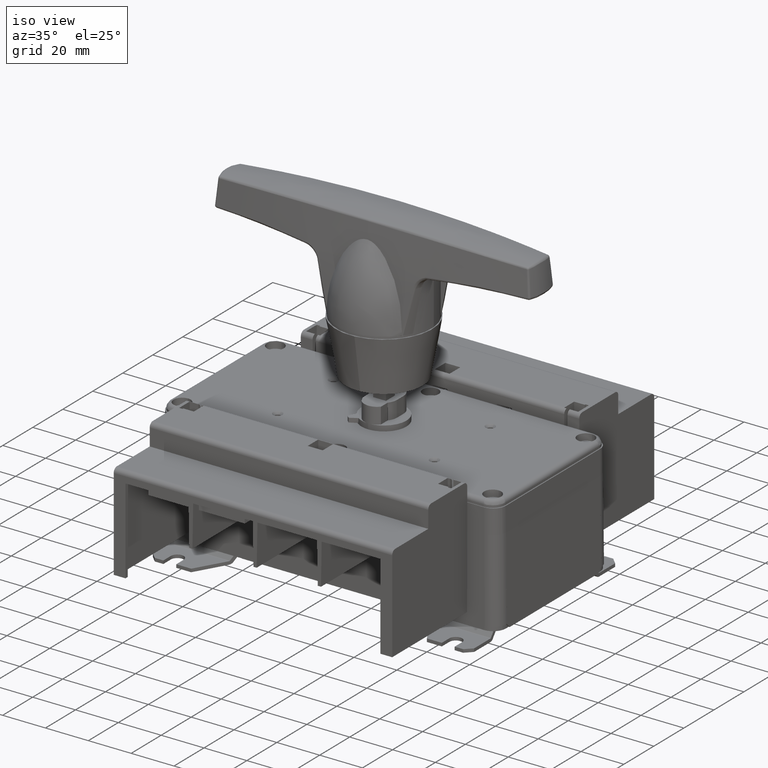
[diagram: clean part render]
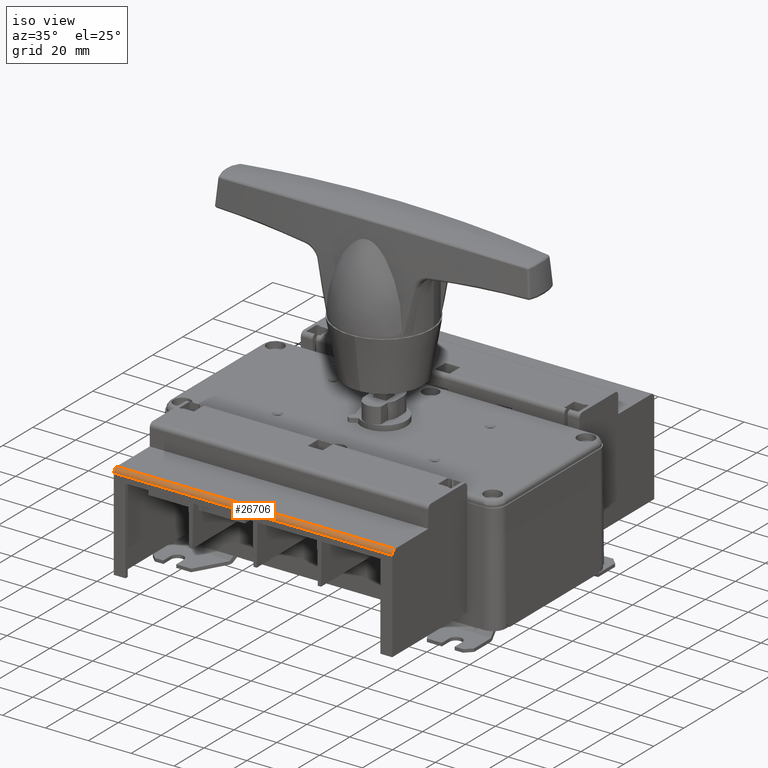
[diagram: same view with one face highlighted and labeled with its STEP entity id]
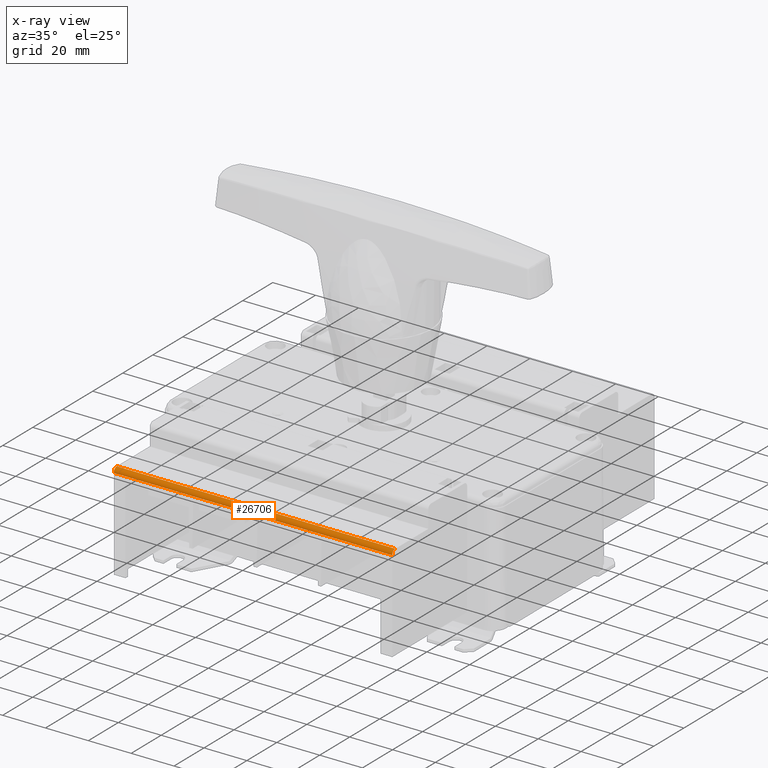
[diagram: x-ray of the same camera — body ghosted, the highlighted face saturated]
A machine part, iso view. The second image highlights one B-rep face of the part: STEP entity #26706.
The next image is the same camera in x-ray: the body ghosted, the highlighted face saturated — about 0% of this face is hidden behind the body in this view.
In plain terms, the highlighted cylindrical surface (edge-blend (fillet) strip) has radius 2 mm, axis along (1, 0, -0).
Its self-contained STEP definition (entity closure, byte-faithful):
#1128 = CARTESIAN_POINT ( 'NONE',  ( -144.3499999999999900, 48.30000000000000400, 49.85862775639540000 ) ) ;
#1692 = ORIENTED_EDGE ( 'NONE', *, *, #30139, .T. ) ;
#2490 = VERTEX_POINT ( 'NONE', #21223 ) ;
#3027 = CARTESIAN_POINT ( 'NONE',  ( -144.3499999999999900, 48.30000000000000400, 47.85862775639540700 ) ) ;
#3680 = CARTESIAN_POINT ( 'NONE',  ( -144.3499999999999900, 48.30000000000000400, 49.85862775639540000 ) ) ;
#5318 = CYLINDRICAL_SURFACE ( 'NONE', #10056, 2.000000000000001800 ) ;
#6179 = LINE ( 'NONE', #1128, #36893 ) ;
#6371 = DIRECTION ( 'NONE',  ( -1.000000000000000000, 3.469446951953614800E-017, 1.249000902703299900E-016 ) ) ;
#6560 = CARTESIAN_POINT ( 'NONE',  ( -144.3499999999999900, 48.30000000000000400, 47.85862775639540700 ) ) ;
#7636 = ORIENTED_EDGE ( 'NONE', *, *, #15007, .F. ) ;
#8488 = FACE_OUTER_BOUND ( 'NONE', #41140, .T. ) ;
#8980 = CARTESIAN_POINT ( 'NONE',  ( -14.35000000000000000, 48.30000000000000400, 49.85862775639540000 ) ) ;
#9590 = CIRCLE ( 'NONE', #29462, 2.000000000000001800 ) ;
#10056 = AXIS2_PLACEMENT_3D ( 'NONE', #6560, #36671, #20058 ) ;
#10635 = DIRECTION ( 'NONE',  ( 1.000000000000000000, -3.469446951953614800E-017, -1.249000902703299900E-016 ) ) ;
#14092 = EDGE_CURVE ( 'NONE', #25739, #2490, #16441, .T. ) ;
#15007 = EDGE_CURVE ( 'NONE', #15381, #25739, #37827, .T. ) ;
#15381 = VERTEX_POINT ( 'NONE', #3680 ) ;
#15950 = ORIENTED_EDGE ( 'NONE', *, *, #23365, .T. ) ;
#16434 = AXIS2_PLACEMENT_3D ( 'NONE', #3027, #6371, #29768 ) ;
#16441 = LINE ( 'NONE', #40779, #40968 ) ;
#20058 = DIRECTION ( 'NONE',  ( 0.0000000000000000000, 0.0000000000000000000, -1.000000000000000000 ) ) ;
#21223 = CARTESIAN_POINT ( 'NONE',  ( -14.35000000000000000, 50.29999999999999700, 47.85862775639540700 ) ) ;
#23365 = EDGE_CURVE ( 'NONE', #32572, #2490, #9590, .T. ) ;
#25739 = VERTEX_POINT ( 'NONE', #30486 ) ;
#26706 = ADVANCED_FACE ( 'NONE', ( #8488 ), #5318, .T. ) ;
#29462 = AXIS2_PLACEMENT_3D ( 'NONE', #31826, #34603, #41749 ) ;
#29768 = DIRECTION ( 'NONE',  ( 0.0000000000000000000, 0.0000000000000000000, 1.000000000000000000 ) ) ;
#30139 = EDGE_CURVE ( 'NONE', #15381, #32572, #6179, .T. ) ;
#30486 = CARTESIAN_POINT ( 'NONE',  ( -144.3499999999999900, 50.29999999999999700, 47.85862775639540700 ) ) ;
#31351 = DIRECTION ( 'NONE',  ( 1.000000000000000000, -3.469446951953614800E-017, -1.249000902703299900E-016 ) ) ;
#31826 = CARTESIAN_POINT ( 'NONE',  ( -14.35000000000000000, 48.30000000000000400, 47.85862775639540700 ) ) ;
#32572 = VERTEX_POINT ( 'NONE', #8980 ) ;
#34603 = DIRECTION ( 'NONE',  ( -1.000000000000000000, 3.469446951953614800E-017, 1.249000902703299900E-016 ) ) ;
#36671 = DIRECTION ( 'NONE',  ( 1.000000000000000000, -3.469446951953614800E-017, -1.249000902703299900E-016 ) ) ;
#36893 = VECTOR ( 'NONE', #31351, 1000.000000000000000 ) ;
#37827 = CIRCLE ( 'NONE', #16434, 2.000000000000001800 ) ;
#39131 = ORIENTED_EDGE ( 'NONE', *, *, #14092, .F. ) ;
#40779 = CARTESIAN_POINT ( 'NONE',  ( -144.3499999999999900, 50.29999999999999700, 47.85862775639540700 ) ) ;
#40968 = VECTOR ( 'NONE', #10635, 1000.000000000000000 ) ;
#41140 = EDGE_LOOP ( 'NONE', ( #15950, #39131, #7636, #1692 ) ) ;
#41749 = DIRECTION ( 'NONE',  ( 0.0000000000000000000, 0.0000000000000000000, 1.000000000000000000 ) ) ;